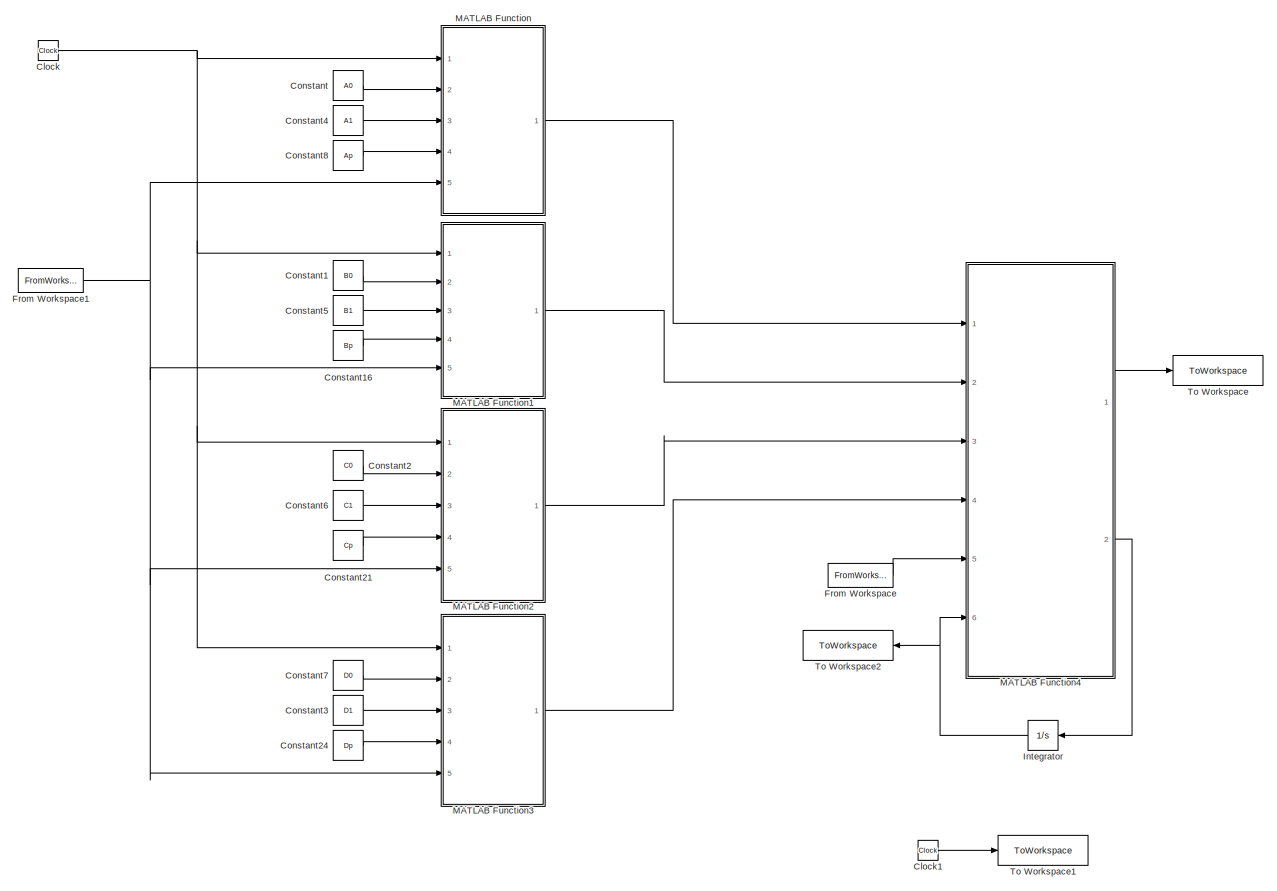
[diagram: root canvas - part 1/1, most of the canvas]
MODEL slx_376f663ed371
KIND model
CONFIG AbsTol = auto
CONFIG EnableMultiTasking = off
CONFIG FixedStep = Ts
CONFIG MaxStep = auto
CONFIG MinStep = auto
CONFIG RelTol = 1e-3
CONFIG SampleTimeConstraint = Unconstrained
CONFIG Solver = FixedStepAuto
CONFIG SolverName = FixedStepAuto
CONFIG StartTime = 0.0
CONFIG StopTime = t(end)
BLOCK [Clock] Clock
BLOCK [Clock] Clock1
BLOCK [Constant] Constant
  Value = A0
  VectorParams1D = off
BLOCK [Constant] Constant1
  Value = B0
  VectorParams1D = off
BLOCK [Constant] Constant16
  Value = Bp
  VectorParams1D = off
BLOCK [Constant] Constant2
  Value = C0
  VectorParams1D = off
BLOCK [Constant] Constant21
  Value = Cp
  VectorParams1D = off
BLOCK [Constant] Constant24
  Value = Dp
  VectorParams1D = off
BLOCK [Constant] Constant3
  Value = D1
  VectorParams1D = off
BLOCK [Constant] Constant4
  Value = A1
  VectorParams1D = off
BLOCK [Constant] Constant5
  Value = B1
  VectorParams1D = off
BLOCK [Constant] Constant6
  Value = C1
  VectorParams1D = off
BLOCK [Constant] Constant7
  Value = D0
  VectorParams1D = off
BLOCK [Constant] Constant8
  Value = Ap
  VectorParams1D = off
BLOCK [FromWorkspace] From Workspace
  SampleTime = Ts
  VariableName = [t in]
BLOCK [FromWorkspace] From Workspace1
  SampleTime = Ts
  VariableName = [t param]
BLOCK [Integrator] Integrator
  InitialCondition = initial_state
  Ports = [1, 1]
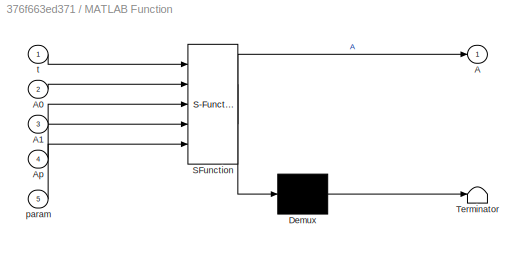
BLOCK [SubSystem] MATLAB Function
  ErrorFcn = Stateflow.Translate.translate
  PermitHierarchicalResolution = ExplicitOnly
  Ports = [5, 1]
  RequestExecContextInheritance = off
  SFBlockType = MATLAB Function
  TreatAsAtomicUnit = on
BLOCK [Demux] MATLAB Function/ Demux 
  Outputs = 1
  Ports = [1, 1]
BLOCK [S-Function] MATLAB Function/ SFunction 
  EnableBusSupport = off
  FunctionName = sf_sfun
  PortCounts = [5 2]
  Ports = [5, 2]
  SFcnIsStateOwnerBlock = off
  SFunctionDeploymentMode = off
  Tag = Stateflow S-Function 2
BLOCK [Terminator] MATLAB Function/ Terminator 
BLOCK [Outport] MATLAB Function/A
BLOCK [Inport] MATLAB Function/A0
  Port = 2
BLOCK [Inport] MATLAB Function/A1
  Port = 3
BLOCK [Inport] MATLAB Function/Ap
  Port = 4
BLOCK [Inport] MATLAB Function/param
  Port = 5
BLOCK [Inport] MATLAB Function/t
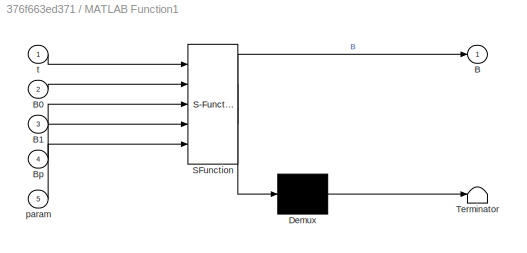
BLOCK [SubSystem] MATLAB Function1
  ErrorFcn = Stateflow.Translate.translate
  PermitHierarchicalResolution = ExplicitOnly
  Ports = [5, 1]
  RequestExecContextInheritance = off
  SFBlockType = MATLAB Function
  TreatAsAtomicUnit = on
BLOCK [Demux] MATLAB Function1/ Demux 
  Outputs = 1
  Ports = [1, 1]
BLOCK [S-Function] MATLAB Function1/ SFunction 
  EnableBusSupport = off
  FunctionName = sf_sfun
  PortCounts = [5 2]
  Ports = [5, 2]
  SFcnIsStateOwnerBlock = off
  SFunctionDeploymentMode = off
  Tag = Stateflow S-Function 1
BLOCK [Terminator] MATLAB Function1/ Terminator 
BLOCK [Outport] MATLAB Function1/B
BLOCK [Inport] MATLAB Function1/B0
  Port = 2
BLOCK [Inport] MATLAB Function1/B1
  Port = 3
BLOCK [Inport] MATLAB Function1/Bp
  Port = 4
BLOCK [Inport] MATLAB Function1/param
  Port = 5
BLOCK [Inport] MATLAB Function1/t
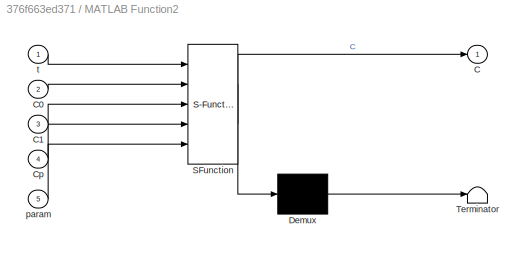
BLOCK [SubSystem] MATLAB Function2
  ErrorFcn = Stateflow.Translate.translate
  PermitHierarchicalResolution = ExplicitOnly
  Ports = [5, 1]
  RequestExecContextInheritance = off
  SFBlockType = MATLAB Function
  TreatAsAtomicUnit = on
BLOCK [Demux] MATLAB Function2/ Demux 
  Outputs = 1
  Ports = [1, 1]
BLOCK [S-Function] MATLAB Function2/ SFunction 
  EnableBusSupport = off
  FunctionName = sf_sfun
  PortCounts = [5 2]
  Ports = [5, 2]
  SFcnIsStateOwnerBlock = off
  SFunctionDeploymentMode = off
  Tag = Stateflow S-Function 3
BLOCK [Terminator] MATLAB Function2/ Terminator 
BLOCK [Outport] MATLAB Function2/C
BLOCK [Inport] MATLAB Function2/C0
  Port = 2
BLOCK [Inport] MATLAB Function2/C1
  Port = 3
BLOCK [Inport] MATLAB Function2/Cp
  Port = 4
BLOCK [Inport] MATLAB Function2/param
  Port = 5
BLOCK [Inport] MATLAB Function2/t
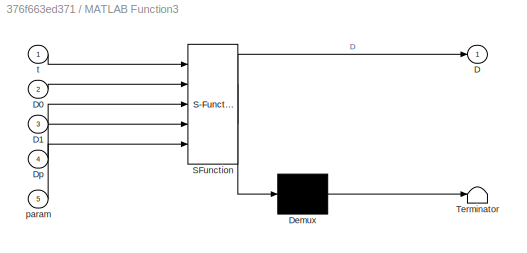
BLOCK [SubSystem] MATLAB Function3
  ErrorFcn = Stateflow.Translate.translate
  PermitHierarchicalResolution = ExplicitOnly
  Ports = [5, 1]
  RequestExecContextInheritance = off
  SFBlockType = MATLAB Function
  TreatAsAtomicUnit = on
BLOCK [Demux] MATLAB Function3/ Demux 
  Outputs = 1
  Ports = [1, 1]
BLOCK [S-Function] MATLAB Function3/ SFunction 
  EnableBusSupport = off
  FunctionName = sf_sfun
  PortCounts = [5 2]
  Ports = [5, 2]
  SFcnIsStateOwnerBlock = off
  SFunctionDeploymentMode = off
  Tag = Stateflow S-Function 4
BLOCK [Terminator] MATLAB Function3/ Terminator 
BLOCK [Outport] MATLAB Function3/D
BLOCK [Inport] MATLAB Function3/D0
  Port = 2
BLOCK [Inport] MATLAB Function3/D1
  Port = 3
BLOCK [Inport] MATLAB Function3/Dp
  Port = 4
BLOCK [Inport] MATLAB Function3/param
  Port = 5
BLOCK [Inport] MATLAB Function3/t
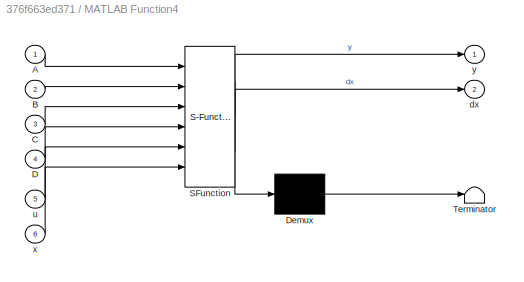
BLOCK [SubSystem] MATLAB Function4
  ErrorFcn = Stateflow.Translate.translate
  PermitHierarchicalResolution = ExplicitOnly
  Ports = [6, 2]
  RequestExecContextInheritance = off
  SFBlockType = MATLAB Function
  TreatAsAtomicUnit = on
BLOCK [Demux] MATLAB Function4/ Demux 
  Outputs = 1
  Ports = [1, 1]
BLOCK [S-Function] MATLAB Function4/ SFunction 
  EnableBusSupport = off
  FunctionName = sf_sfun
  PortCounts = [6 3]
  Ports = [6, 3]
  SFcnIsStateOwnerBlock = off
  SFunctionDeploymentMode = off
  Tag = Stateflow S-Function 5
BLOCK [Terminator] MATLAB Function4/ Terminator 
BLOCK [Inport] MATLAB Function4/A
BLOCK [Inport] MATLAB Function4/B
  Port = 2
BLOCK [Inport] MATLAB Function4/C
  Port = 3
BLOCK [Inport] MATLAB Function4/D
  Port = 4
BLOCK [Outport] MATLAB Function4/dx
  Port = 2
BLOCK [Inport] MATLAB Function4/u
  Port = 5
BLOCK [Inport] MATLAB Function4/x
  Port = 6
BLOCK [Outport] MATLAB Function4/y
BLOCK [ToWorkspace] To Workspace
  FixptAsFi = on
  MaxDataPoints = inf
  Ports = [1]
  SampleTime = Ts
  Save2DSignal = 2-D array (concatenate along first dimension)
  VariableName = y
BLOCK [ToWorkspace] To Workspace1
  FixptAsFi = on
  MaxDataPoints = inf
  Ports = [1]
  SampleTime = Ts
  Save2DSignal = 2-D array (concatenate along first dimension)
  VariableName = t
BLOCK [ToWorkspace] To Workspace2
  FixptAsFi = on
  MaxDataPoints = inf
  Ports = [1]
  SampleTime = Ts
  Save2DSignal = 2-D array (concatenate along first dimension)
  VariableName = x
LINE Clock1:1 -> To Workspace1:1
NET Clock:1 -> MATLAB Function1:1, MATLAB Function2:1, MATLAB Function3:1, MATLAB Function:1
LINE Constant16:1 -> MATLAB Function1:4
LINE Constant1:1 -> MATLAB Function1:2
LINE Constant21:1 -> MATLAB Function2:4
LINE Constant24:1 -> MATLAB Function3:4
LINE Constant2:1 -> MATLAB Function2:2
LINE Constant3:1 -> MATLAB Function3:3
LINE Constant4:1 -> MATLAB Function:3
LINE Constant5:1 -> MATLAB Function1:3
LINE Constant6:1 -> MATLAB Function2:3
LINE Constant7:1 -> MATLAB Function3:2
LINE Constant8:1 -> MATLAB Function:4
LINE Constant:1 -> MATLAB Function:2
NET From Workspace1:1 -> MATLAB Function1:5, MATLAB Function2:5, MATLAB Function3:5, MATLAB Function:5
LINE From Workspace:1 -> MATLAB Function4:5
NET Integrator:1 -> MATLAB Function4:6, To Workspace2:1
LINE MATLAB Function1:1 -> MATLAB Function4:2
LINE MATLAB Function2:1 -> MATLAB Function4:3
LINE MATLAB Function3:1 -> MATLAB Function4:4
LINE MATLAB Function4:1 -> To Workspace:1
LINE MATLAB Function4:2 -> Integrator:1
LINE MATLAB Function:1 -> MATLAB Function4:1
note: NET lines group one-source signal fan-out (src -> all destinations, sorted); 1:1 wires keep LINE
CHART MATLAB Function1 states=1 transitions=1
  STATE_LABEL 'eML_blk_kernel()'
  STATE_LABEL 'SCRIPT:\nfunction B = B_matrix(t,B0,B1,Bp,param)\n\nB = B0+B1*(t^0.5);\n\nfor i=1:length(param)\n    B = B+Bp(:,:,i)*param(i);\nend\n'
CHART MATLAB Function states=1 transitions=1
  STATE_LABEL 'eML_blk_kernel()'
  STATE_LABEL 'SCRIPT:\nfunction A = A_matrix(t,A0,A1,Ap,param)\n\nA = A0+A1*(t^0.5);\n\nfor i=1:length(param)\n    A = A+Ap(:,:,i)*param(i);\nend\n'
CHART MATLAB Function2 states=1 transitions=1
  STATE_LABEL 'eML_blk_kernel()'
  STATE_LABEL 'SCRIPT:\nfunction C = C_matrix(t,C0,C1,Cp,param)\n\nC = C0+C1*(t^0.5);\n\nfor i=1:length(param)\n    C = C+Cp(:,:,i)*param(i);\nend\n'
CHART MATLAB Function3 states=1 transitions=1
  STATE_LABEL 'eML_blk_kernel()'
  STATE_LABEL 'SCRIPT:\nfunction D = D_matrix(t,D0,D1,Dp,param)\n\nD = D0+D1*(t^0.5);\n\nfor i=1:length(param)\n    D = D+Dp(:,:,i)*param(i);\nend\n'
CHART MATLAB Function4 states=1 transitions=1
  STATE_LABEL 'eML_blk_kernel()'
  STATE_LABEL 'SCRIPT:\nfunction [y,dx] = statespace_model(A,B,C,D,u,x)\n\ndx = zeros(size(A,1),1);\ny  = zeros(size(C,1),1);\n\ndx = A*x+B*u;\ny  = C*x+D*u;\n'
CHART  states=0 transitions=0
CHART  states=0 transitions=0
CHART  states=0 transitions=0
CHART  states=0 transitions=0
CHART  states=0 transitions=0
